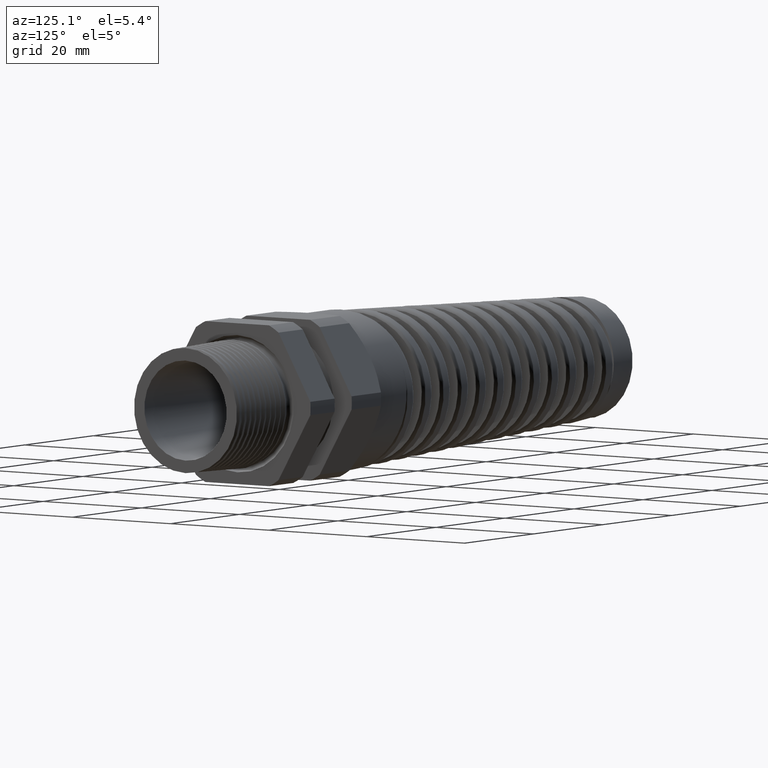
[diagram: clean part render]
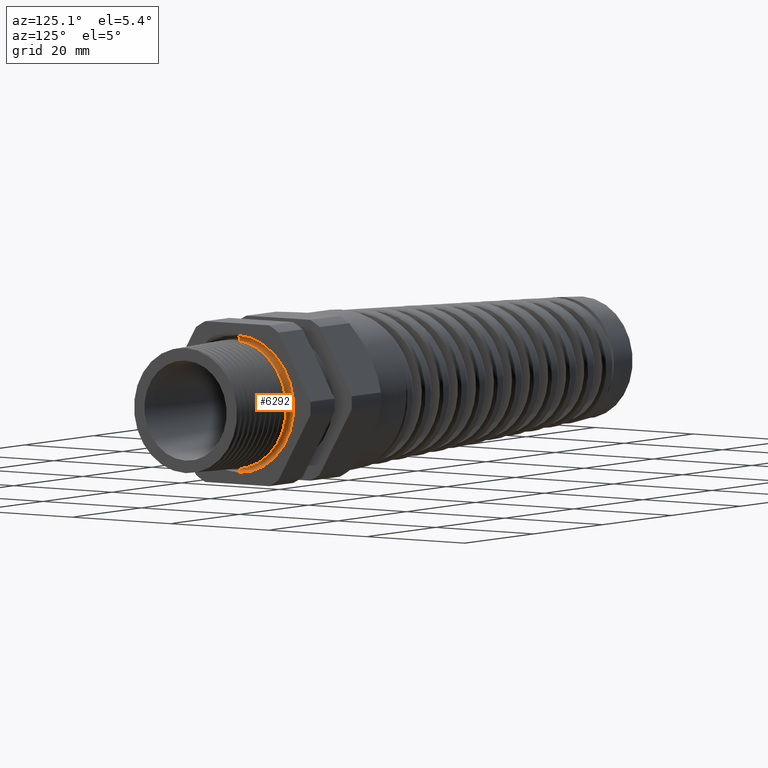
[diagram: same view with one face highlighted and labeled with its STEP entity id]
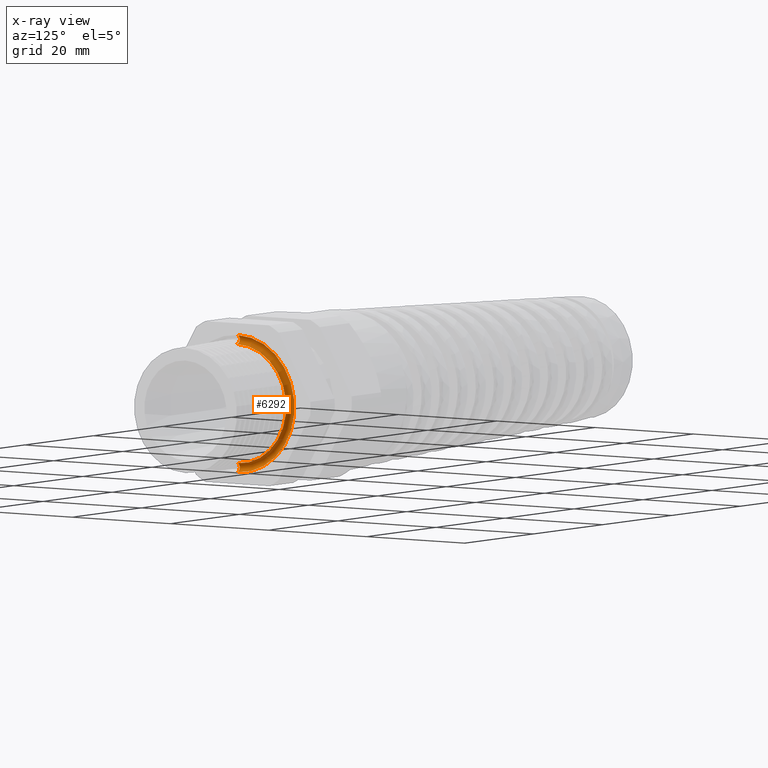
[diagram: x-ray of the same camera — body ghosted, the highlighted face saturated]
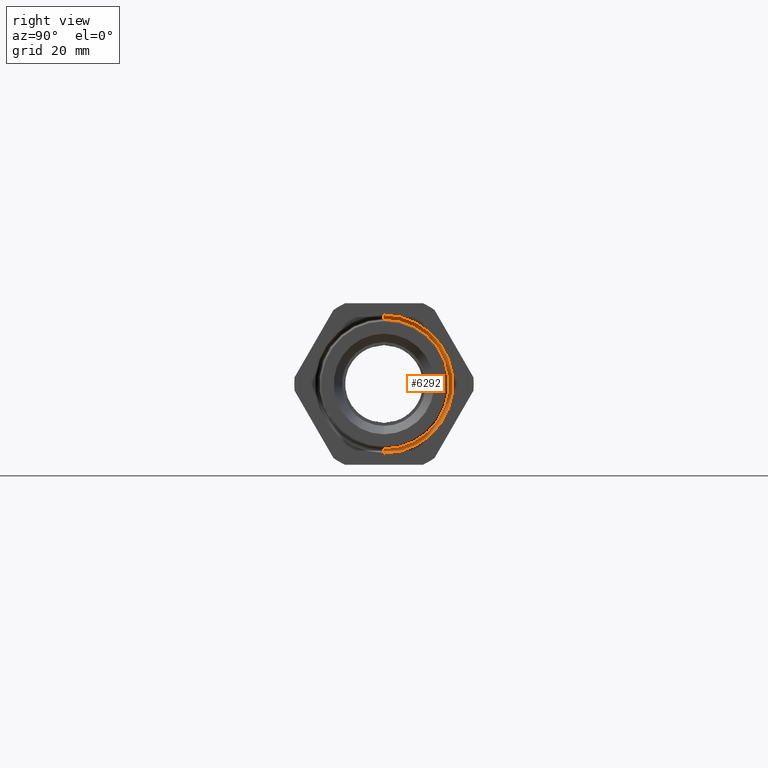
[diagram: same view with one face highlighted and labeled with its STEP entity id]
A machine part, auxiliary view. The second image highlights one B-rep face of the part: STEP entity #6292.
The next image is the same camera in x-ray: the body ghosted, the highlighted face saturated — about 0% of this face is hidden behind the body in this view.
A second angle (right view) of the same face is appended — the face is thin or edge-on in the first view.
In plain terms, the highlighted toroidal blend (fillet) surface has major radius 10.7363 mm and minor (blend) radius 0.762 mm.
Its self-contained STEP definition (entity closure, byte-faithful):
#3314 = CARTESIAN_POINT ( 'NONE',  ( -0.3089999999999999400, 4.809072312103047200E-017, 0.3926905549788976500 ) ) ;
#3321 = CARTESIAN_POINT ( 'NONE',  ( -0.3089999999999999400, 0.0000000000000000000, -0.3926905549788976500 ) ) ;
#3346 = DIRECTION ( 'NONE',  ( 0.0000000000000000000, 0.0000000000000000000, -1.000000000000000000 ) ) ;
#3347 = DIRECTION ( 'NONE',  ( 1.000000000000000000, 0.0000000000000000000, 0.0000000000000000000 ) ) ;
#3348 = CARTESIAN_POINT ( 'NONE',  ( -0.3089999999999999400, 0.0000000000000000000, 0.0000000000000000000 ) ) ;
#3349 = AXIS2_PLACEMENT_3D ( 'NONE', #3348, #3347, #3346 ) ;
#3350 = CIRCLE ( 'NONE', #3349, 0.3926905549788976500 ) ;
#6277 = ORIENTED_EDGE ( 'NONE', *, *, #8945, .F. ) ;
#6278 = ORIENTED_EDGE ( 'NONE', *, *, #18935, .T. ) ;
#6279 = ORIENTED_EDGE ( 'NONE', *, *, #19075, .F. ) ;
#6280 = ORIENTED_EDGE ( 'NONE', *, *, #18929, .F. ) ;
#6292 = ADVANCED_FACE ( 'NONE', ( #15862 ), #15857, .F. ) ;
#6293 = EDGE_LOOP ( 'NONE', ( #6277, #6278, #6279, #6280 ) ) ;
#8865 = VERTEX_POINT ( 'NONE', #3321 ) ;
#8867 = VERTEX_POINT ( 'NONE', #3314 ) ;
#8945 = EDGE_CURVE ( 'NONE', #8865, #8867, #3350, .T. ) ;
#15853 = DIRECTION ( 'NONE',  ( 0.0000000000000000000, 0.0000000000000000000, -1.000000000000000000 ) ) ;
#15854 = DIRECTION ( 'NONE',  ( 1.000000000000000000, 0.0000000000000000000, 0.0000000000000000000 ) ) ;
#15855 = CARTESIAN_POINT ( 'NONE',  ( -0.3089999999999999400, 0.0000000000000000000, 0.0000000000000000000 ) ) ;
#15856 = AXIS2_PLACEMENT_3D ( 'NONE', #15855, #15854, #15853 ) ;
#15857 = TOROIDAL_SURFACE ( 'NONE', #15856, 0.4226905549788976300, 0.02999999999999997500 ) ;
#15862 = FACE_OUTER_BOUND ( 'NONE', #6293, .T. ) ;
#18325 = CARTESIAN_POINT ( 'NONE',  ( -0.3100000000000000000, 5.543656227063468900E-017, 0.4526738836800274200 ) ) ;
#18347 = CARTESIAN_POINT ( 'NONE',  ( -0.3100000000000000000, 0.0000000000000000000, -0.4526738836800274200 ) ) ;
#18397 = CARTESIAN_POINT ( 'NONE',  ( -0.3089999999999999400, 5.176466351847252300E-017, 0.4226905549788976300 ) ) ;
#18404 = DIRECTION ( 'NONE',  ( 0.0000000000000000000, 0.0000000000000000000, -1.000000000000000000 ) ) ;
#18405 = DIRECTION ( 'NONE',  ( 0.0000000000000000000, -1.000000000000000000, 0.0000000000000000000 ) ) ;
#18406 = CARTESIAN_POINT ( 'NONE',  ( -0.3089999999999999400, 0.0000000000000000000, -0.4226905549788976300 ) ) ;
#18407 = AXIS2_PLACEMENT_3D ( 'NONE', #18406, #18405, #18404 ) ;
#18412 = CIRCLE ( 'NONE', #18407, 0.02999999999999995400 ) ;
#18420 = DIRECTION ( 'NONE',  ( 0.0000000000000000000, 1.224646799147354900E-016, 1.000000000000000000 ) ) ;
#18421 = DIRECTION ( 'NONE',  ( 0.0000000000000000000, 1.000000000000000000, -1.224646799147353200E-016 ) ) ;
#18422 = AXIS2_PLACEMENT_3D ( 'NONE', #18397, #18421, #18420 ) ;
#18423 = CIRCLE ( 'NONE', #18422, 0.02999999999999995400 ) ;
#18712 = DIRECTION ( 'NONE',  ( 0.0000000000000000000, 0.0000000000000000000, -1.000000000000000000 ) ) ;
#18713 = DIRECTION ( 'NONE',  ( -1.000000000000000000, 0.0000000000000000000, 0.0000000000000000000 ) ) ;
#18714 = CARTESIAN_POINT ( 'NONE',  ( -0.3100000000000000000, 0.0000000000000000000, 0.0000000000000000000 ) ) ;
#18715 = AXIS2_PLACEMENT_3D ( 'NONE', #18714, #18713, #18712 ) ;
#18716 = CIRCLE ( 'NONE', #18715, 0.4526738836800274800 ) ;
#18911 = VERTEX_POINT ( 'NONE', #18347 ) ;
#18923 = VERTEX_POINT ( 'NONE', #18325 ) ;
#18929 = EDGE_CURVE ( 'NONE', #8867, #18923, #18423, .T. ) ;
#18935 = EDGE_CURVE ( 'NONE', #8865, #18911, #18412, .T. ) ;
#19075 = EDGE_CURVE ( 'NONE', #18923, #18911, #18716, .T. ) ;